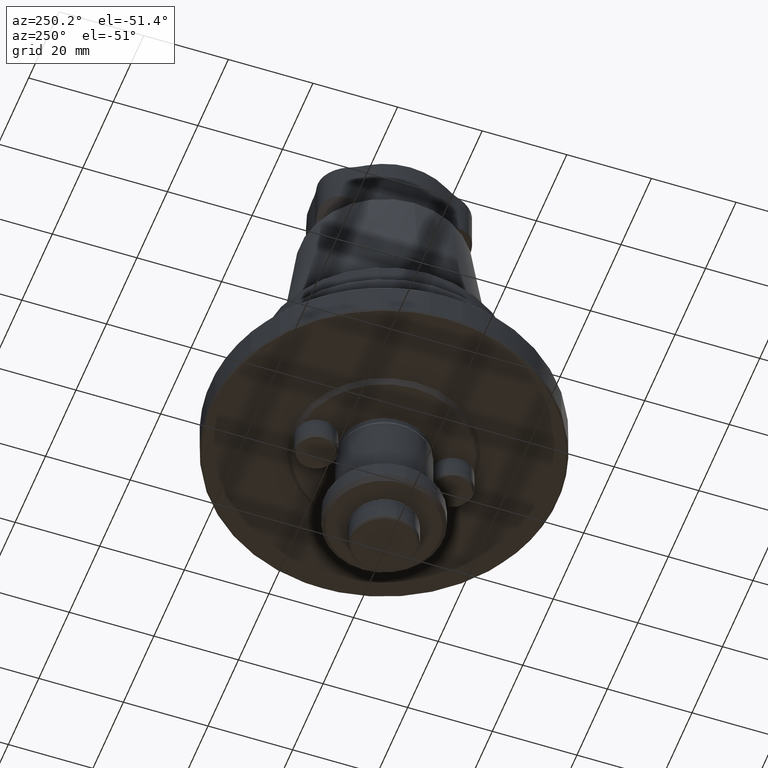
[diagram: clean part render]
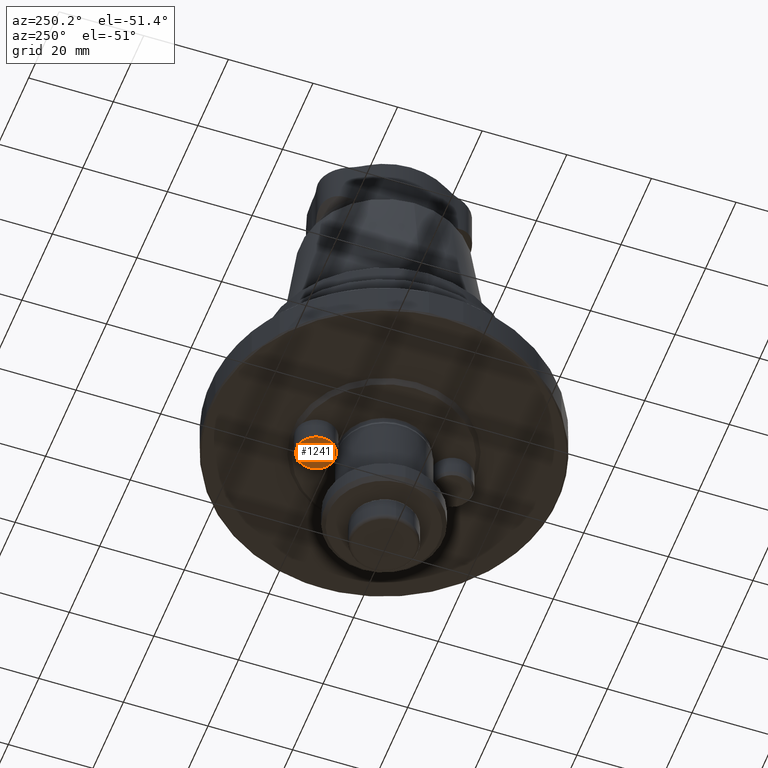
[diagram: same view with one face highlighted and labeled with its STEP entity id]
A machine part, auxiliary view. The second image highlights one B-rep face of the part: STEP entity #1241.
In plain terms, the highlighted planar face has unit normal (0, 0, -1).
Its self-contained STEP definition (entity closure, byte-faithful):
#186=PLANE('',#1399);
#433=ORIENTED_EDGE('',*,*,#658,.T.);
#658=EDGE_CURVE('',#794,#794,#893,.T.);
#794=VERTEX_POINT('',#2134);
#893=CIRCLE('',#1398,4.5381197846483);
#1001=EDGE_LOOP('',(#433));
#1131=FACE_BOUND('',#1001,.T.);
#1241=ADVANCED_FACE('',(#1131),#186,.T.);
#1398=AXIS2_PLACEMENT_3D('',#2133,#1708,#1709);
#1399=AXIS2_PLACEMENT_3D('',#2135,#1710,#1711);
#1708=DIRECTION('',(0.,0.,-1.));
#1709=DIRECTION('',(9.86076131526265E-32,-1.,0.));
#1710=DIRECTION('',(0.,0.,-1.));
#1711=DIRECTION('',(9.86076131526265E-32,-1.,0.));
#2133=CARTESIAN_POINT('',(0.,16.05,-15.6));
#2134=CARTESIAN_POINT('',(4.4749316016488E-31,11.5118802153517,-15.6));
#2135=CARTESIAN_POINT('',(0.,16.05,-15.6));